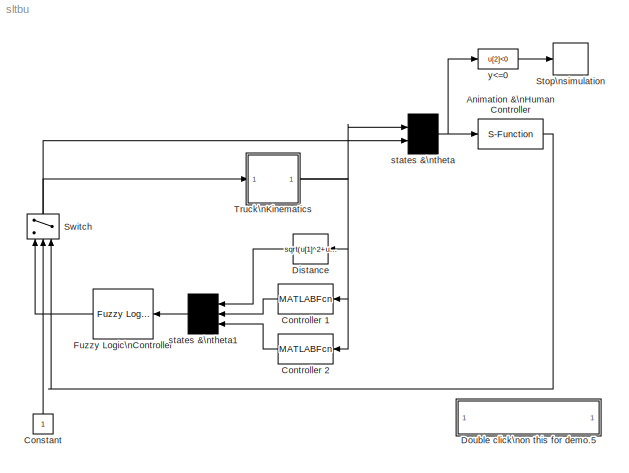
MODEL sltbu
KIND model
CONFIG AbsTol = 1e-6
CONFIG FixedStep = 0.1
CONFIG MaxStep = 0.1
CONFIG MinStep = auto
CONFIG PreLoadFcn = inittbu;
CONFIG RelTol = 1e-3
CONFIG Solver = ode3
CONFIG SolverMode = SingleTasking
CONFIG StartTime = 0.0
CONFIG StopTime = 999999
BLOCK [S-Function]  Animation &\nHuman Controller
  FunctionName = animtbu
  PortCounts = []
  Ports = [1, 1]
  SFunctionModules = ''
BLOCK [Constant] Constant
  MaskIconFrame = on
  MaskIconOpaque = on
  MaskIconRotate = none
  MaskIconUnits = autoscale
  Value = 1
  VectorParams1D = on
BLOCK [MATLABFcn] Controller 1
  MATLABFcn = ctrltbu1
  MaskIconFrame = on
  MaskIconOpaque = on
  MaskIconRotate = none
  MaskIconUnits = autoscale
  Output1D = on
  OutputDimensions = 1
  OutputSignalType = auto
BLOCK [MATLABFcn] Controller 2
  MATLABFcn = ctrltbu2
  MaskIconFrame = on
  MaskIconOpaque = on
  MaskIconRotate = none
  MaskIconUnits = autoscale
  Output1D = on
  OutputDimensions = 1
  OutputSignalType = auto
BLOCK [Fcn] Distance
  Expr = sqrt(u[1]^2+u[2]^2)
  MaskIconFrame = on
  MaskIconOpaque = on
  MaskIconRotate = none
  MaskIconUnits = autoscale
BLOCK [SubSystem] Double click\non this for demo.5
  MaskDisplay = disp('Variable Initialization')
  MaskIconFrame = on
  MaskIconOpaque = on
  MaskIconRotate = none
  MaskIconUnits = autoscale
  OpenFcn = inittbu
  Ports = []
  RTWFcnNameOpts = Auto
  RTWFileNameOpts = Auto
  RTWSystemCode = Auto
  ShowPortLabels = off
  TreatAsAtomicUnit = off
BLOCK [Reference] Fuzzy Logic\nController  REF=fuzblock/Fuzzy Logic \nController  (lib defined in mdl_858b3b3e7478)
  Ports = [1, 1]
  SourceBlock = fuzblock/Fuzzy Logic \nController
  SourceType = FIS
  fis = fismat
BLOCK [Stop] Stop\nsimulation
BLOCK [Switch] Switch
  MaskIconFrame = on
  MaskIconOpaque = on
  MaskIconRotate = none
  MaskIconUnits = autoscale
  Threshold = 0
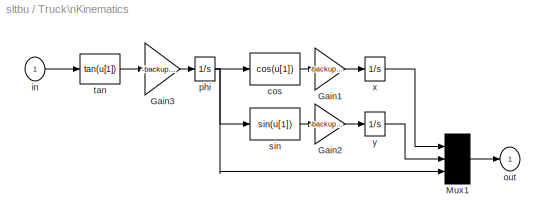
BLOCK [SubSystem] Truck\nKinematics
  MaskCallbackString = ||
  MaskDescription = Truck Dynamics
  MaskDisplay = plot(-3, -3, 3, 3,[-1 1 1 -1 -1],[-2 -2 2 2 -2],[-1.1 -1.1],[-2 -1],[1.1 1.1],[-2 -1],[1.35 0.85],[1.93 1.07],[-0.85 -1.35],[1.93 1.07])
  MaskEnableString = on,on,on
  MaskHelp = Truck dynamics
  MaskIconFrame = on
  MaskIconOpaque = on
  MaskIconRotate = none
  MaskIconUnits = autoscale
  MaskInitialization = init_cond = @1; backup_speed = @2; truck_l = @3;
  MaskPromptString = Initial Conditions (x, y, phi):|Backup Speed:|truck Length:
  MaskStyleString = edit,edit,edit
  MaskToolTipString = on,on,on
  MaskTunableValueString = on,on,on
  MaskType = Truck Dynamics
  MaskValueString = TbuInitCond|backup_speed|truck_l
  MaskVisibilityString = on,on,on
  Ports = [1, 1]
  RTWFcnNameOpts = Auto
  RTWFileNameOpts = Auto
  RTWSystemCode = Auto
  ShowPortLabels = off
  TreatAsAtomicUnit = off
BLOCK [Gain] Truck\nKinematics/Gain1
  Gain = -backup_speed
  Multiplication = Element-wise(K.*u)
  SaturateOnIntegerOverflow = on
BLOCK [Gain] Truck\nKinematics/Gain2
  Gain = -backup_speed
  Multiplication = Element-wise(K.*u)
  SaturateOnIntegerOverflow = on
BLOCK [Gain] Truck\nKinematics/Gain3
  Gain = -backup_speed/truck_l
  Multiplication = Element-wise(K.*u)
  SaturateOnIntegerOverflow = on
BLOCK [Mux] Truck\nKinematics/Mux1
  DisplayOption = none
  Inputs = 3
  Ports = [3, 1]
BLOCK [Fcn] Truck\nKinematics/cos
  Expr = cos(u[1])
BLOCK [Inport] Truck\nKinematics/in
  Interpolate = on
  Port = 1
BLOCK [Outport] Truck\nKinematics/out
  InitialOutput = 0
  OutputWhenDisabled = held
  Port = 1
BLOCK [Integrator] Truck\nKinematics/phi
  AbsoluteTolerance = auto
  ExternalReset = none
  InitialCondition = init_cond(3)
  InitialConditionSource = internal
  LimitOutput = off
  LowerSaturationLimit = -inf
  Ports = [1, 1]
  ShowSaturationPort = off
  ShowStatePort = off
  UpperSaturationLimit = inf
BLOCK [Fcn] Truck\nKinematics/sin
  Expr = sin(u[1])
BLOCK [Fcn] Truck\nKinematics/tan
  Expr = tan(u[1])
BLOCK [Integrator] Truck\nKinematics/x
  AbsoluteTolerance = auto
  ExternalReset = none
  InitialCondition = init_cond(1)
  InitialConditionSource = internal
  LimitOutput = off
  LowerSaturationLimit = -inf
  Ports = [1, 1]
  ShowSaturationPort = off
  ShowStatePort = off
  UpperSaturationLimit = inf
BLOCK [Integrator] Truck\nKinematics/y
  AbsoluteTolerance = auto
  ExternalReset = none
  InitialCondition = init_cond(2)
  InitialConditionSource = internal
  LimitOutput = off
  LowerSaturationLimit = -inf
  Ports = [1, 1]
  ShowSaturationPort = off
  ShowStatePort = off
  UpperSaturationLimit = inf
BLOCK [Mux] states &\ntheta
  DisplayOption = none
  Inputs = [3 1]
  Ports = [2, 1]
BLOCK [Mux] states &\ntheta1
  DisplayOption = none
  Inputs = 3
  MaskIconFrame = on
  MaskIconOpaque = on
  MaskIconRotate = none
  MaskIconUnits = autoscale
  Ports = [3, 1]
BLOCK [Fcn] y<=0
  Expr = u[2]<0
LINE  Animation &\nHuman Controller:1 -> Switch:3
LINE Constant:1 -> Switch:2
LINE Controller 1:1 -> states &\ntheta1:2
LINE Controller 2:1 -> states &\ntheta1:3
LINE Distance:1 -> states &\ntheta1:1
LINE Fuzzy Logic\nController:1 -> Switch:1
NET Switch:1 -> Truck\nKinematics:1, states &\ntheta:2
LINE Truck\nKinematics/Gain1:1 -> Truck\nKinematics/x:1
LINE Truck\nKinematics/Gain2:1 -> Truck\nKinematics/y:1
LINE Truck\nKinematics/Gain3:1 -> Truck\nKinematics/phi:1
LINE Truck\nKinematics/Mux1:1 -> Truck\nKinematics/out:1
LINE Truck\nKinematics/cos:1 -> Truck\nKinematics/Gain1:1
LINE Truck\nKinematics/in:1 -> Truck\nKinematics/tan:1
NET Truck\nKinematics/phi:1 -> Truck\nKinematics/Mux1:3, Truck\nKinematics/cos:1, Truck\nKinematics/sin:1
LINE Truck\nKinematics/sin:1 -> Truck\nKinematics/Gain2:1
LINE Truck\nKinematics/tan:1 -> Truck\nKinematics/Gain3:1
LINE Truck\nKinematics/x:1 -> Truck\nKinematics/Mux1:1
LINE Truck\nKinematics/y:1 -> Truck\nKinematics/Mux1:2
NET Truck\nKinematics:1 -> Controller 1:1, Controller 2:1, Distance:1, states &\ntheta:1
LINE states &\ntheta1:1 -> Fuzzy Logic\nController:1
NET states &\ntheta:1 ->  Animation &\nHuman Controller:1, y<=0:1
LINE y<=0:1 -> Stop\nsimulation:1
note: NET lines group one-source signal fan-out (src -> all destinations, sorted); 1:1 wires keep LINE
